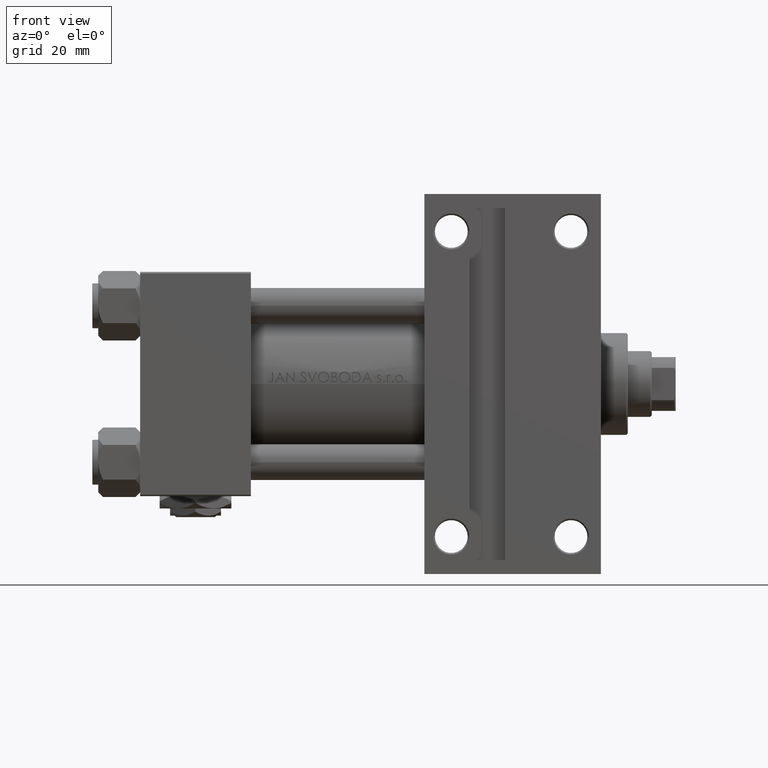
[diagram: clean part render]
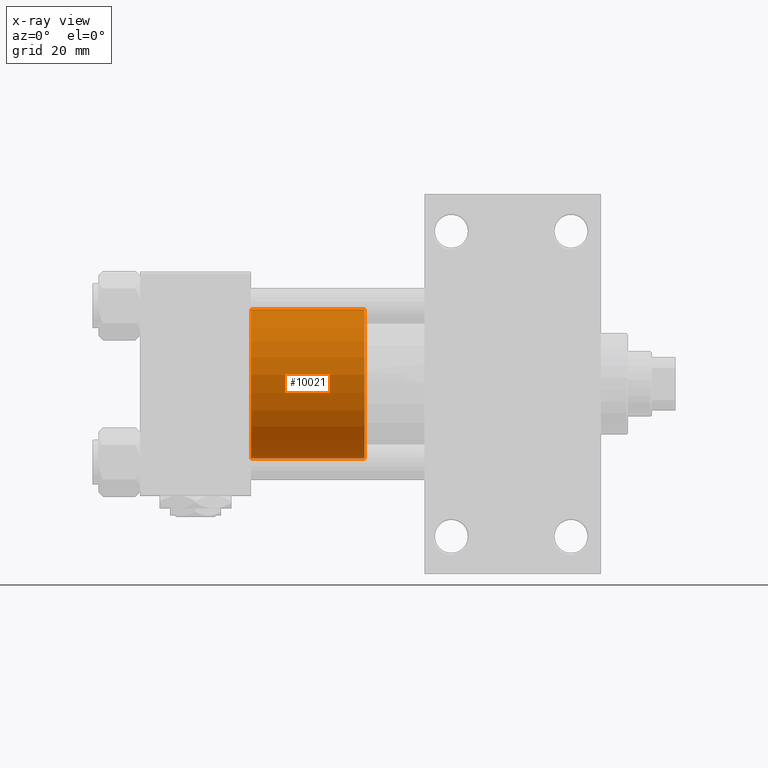
[diagram: x-ray — body ghosted, one internal face saturated and labeled with its STEP entity id]
A machine part, front view, then the same camera in x-ray: the body is ghosted and one INTERNAL B-rep face — a face not visible from any outside direction — is saturated and labeled: STEP entity #10021.
In plain terms, the highlighted cylindrical surface (partial cylindrical patch) has radius 25 mm, axis along (-1, 0, 0).
Its self-contained STEP definition (entity closure, byte-faithful):
#2363 = EDGE_CURVE ( 'NONE', #40226, #16074, #15888, .T. ) ;
#2814 = VECTOR ( 'NONE', #34969, 1000.000000000000000 ) ;
#6662 = AXIS2_PLACEMENT_3D ( 'NONE', #26285, #10217, #25777 ) ;
#8118 = CIRCLE ( 'NONE', #8904, 25.00000000000000000 ) ;
#8904 = AXIS2_PLACEMENT_3D ( 'NONE', #48086, #9406, #39784 ) ;
#9406 = DIRECTION ( 'NONE',  ( 0.000000000000000000, 0.000000000000000000, 1.000000000000000000 ) ) ;
#10021 = ADVANCED_FACE ( 'NONE', ( #42685 ), #23575, .T. ) ;
#10217 = DIRECTION ( 'NONE',  ( 0.000000000000000000, 0.000000000000000000, 1.000000000000000000 ) ) ;
#11012 = VERTEX_POINT ( 'NONE', #45532 ) ;
#12127 = DIRECTION ( 'NONE',  ( -0.000000000000000000, -0.000000000000000000, -1.000000000000000000 ) ) ;
#14361 = CARTESIAN_POINT ( 'NONE',  ( 25.00000000000000000, 3.061616997868383043E-15, 38.00000000000000000 ) ) ;
#14872 = EDGE_LOOP ( 'NONE', ( #27622, #48069, #48854, #34679 ) ) ;
#15888 = LINE ( 'NONE', #31211, #23684 ) ;
#16074 = VERTEX_POINT ( 'NONE', #46761 ) ;
#19233 = EDGE_CURVE ( 'NONE', #11012, #25989, #26937, .T. ) ;
#21101 = CIRCLE ( 'NONE', #6662, 25.00000000000000000 ) ;
#21737 = AXIS2_PLACEMENT_3D ( 'NONE', #27599, #35375, #42944 ) ;
#23575 = CYLINDRICAL_SURFACE ( 'NONE', #21737, 25.00000000000000000 ) ;
#23684 = VECTOR ( 'NONE', #12127, 1000.000000000000000 ) ;
#25777 = DIRECTION ( 'NONE',  ( 1.000000000000000000, 0.000000000000000000, 0.000000000000000000 ) ) ;
#25989 = VERTEX_POINT ( 'NONE', #49277 ) ;
#26285 = CARTESIAN_POINT ( 'NONE',  ( 0.000000000000000000, 0.000000000000000000, 0.000000000000000000 ) ) ;
#26937 = LINE ( 'NONE', #30682, #2814 ) ;
#27599 = CARTESIAN_POINT ( 'NONE',  ( 0.000000000000000000, 0.000000000000000000, 38.00000000000000000 ) ) ;
#27622 = ORIENTED_EDGE ( 'NONE', *, *, #29042, .F. ) ;
#29042 = EDGE_CURVE ( 'NONE', #40226, #11012, #8118, .T. ) ;
#30682 = CARTESIAN_POINT ( 'NONE',  ( -25.00000000000000000, 0.000000000000000000, 38.00000000000000000 ) ) ;
#31211 = CARTESIAN_POINT ( 'NONE',  ( 25.00000000000000000, 3.061616997868383043E-15, 38.00000000000000000 ) ) ;
#31524 = EDGE_CURVE ( 'NONE', #16074, #25989, #21101, .T. ) ;
#34679 = ORIENTED_EDGE ( 'NONE', *, *, #19233, .F. ) ;
#34969 = DIRECTION ( 'NONE',  ( -0.000000000000000000, -0.000000000000000000, -1.000000000000000000 ) ) ;
#35375 = DIRECTION ( 'NONE',  ( -0.000000000000000000, -0.000000000000000000, -1.000000000000000000 ) ) ;
#39784 = DIRECTION ( 'NONE',  ( 1.000000000000000000, 0.000000000000000000, 0.000000000000000000 ) ) ;
#40226 = VERTEX_POINT ( 'NONE', #14361 ) ;
#42685 = FACE_OUTER_BOUND ( 'NONE', #14872, .T. ) ;
#42944 = DIRECTION ( 'NONE',  ( -1.000000000000000000, 0.000000000000000000, 0.000000000000000000 ) ) ;
#45532 = CARTESIAN_POINT ( 'NONE',  ( -25.00000000000000000, 0.000000000000000000, 38.00000000000000000 ) ) ;
#46761 = CARTESIAN_POINT ( 'NONE',  ( 25.00000000000000000, 3.061616997868383043E-15, 0.000000000000000000 ) ) ;
#48069 = ORIENTED_EDGE ( 'NONE', *, *, #2363, .T. ) ;
#48086 = CARTESIAN_POINT ( 'NONE',  ( 0.000000000000000000, 0.000000000000000000, 38.00000000000000000 ) ) ;
#48854 = ORIENTED_EDGE ( 'NONE', *, *, #31524, .T. ) ;
#49277 = CARTESIAN_POINT ( 'NONE',  ( -25.00000000000000000, 0.000000000000000000, 0.000000000000000000 ) ) ;